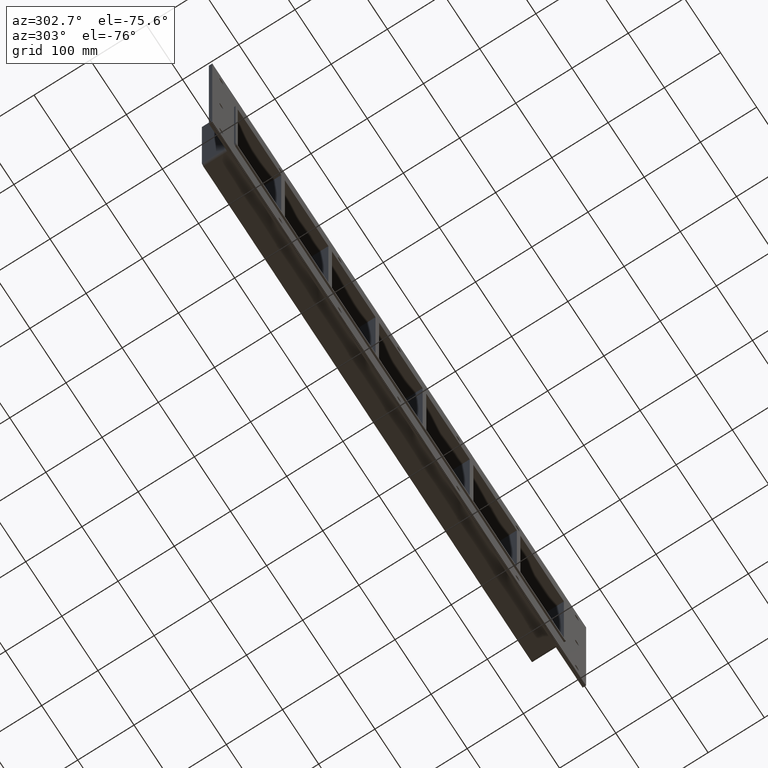
[diagram: clean part render]
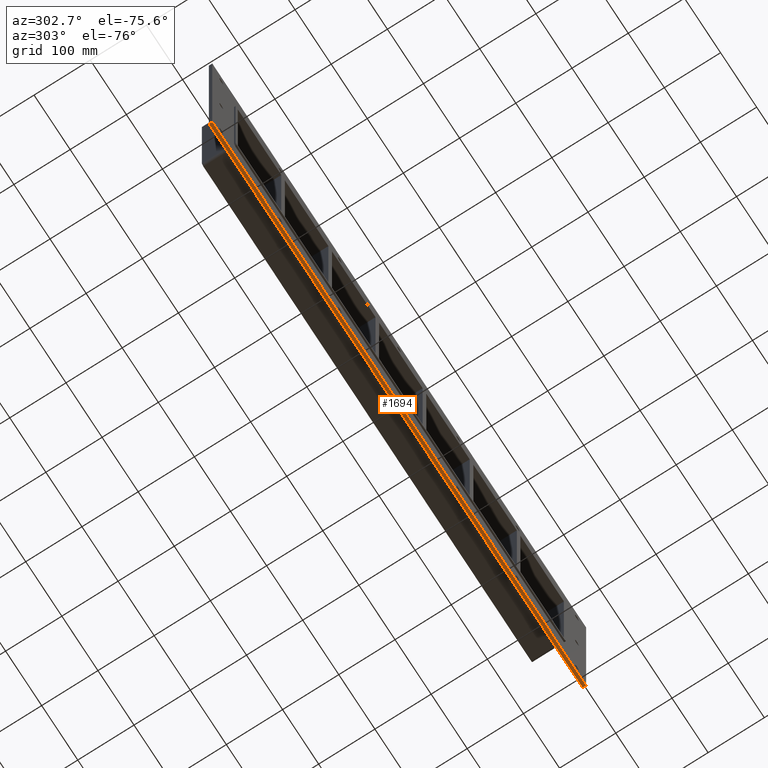
[diagram: same view with one face highlighted and labeled with its STEP entity id]
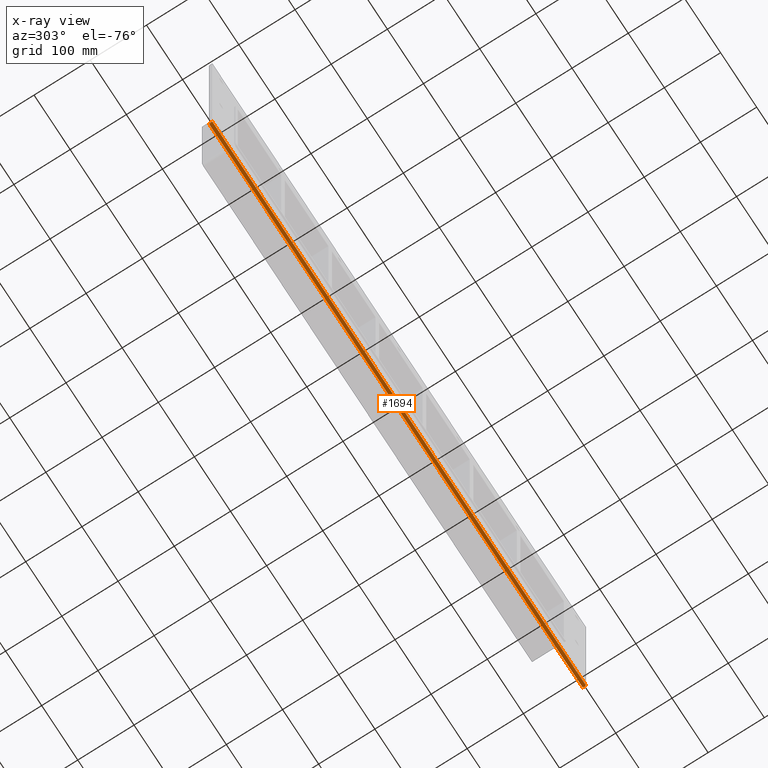
[diagram: x-ray of the same camera — body ghosted, the highlighted face saturated]
A machine part, auxiliary view. The second image highlights one B-rep face of the part: STEP entity #1694.
The next image is the same camera in x-ray: the body ghosted, the highlighted face saturated — about 0% of this face is hidden behind the body in this view.
In plain terms, the highlighted planar face has unit normal (0, 0, -1).
Its self-contained STEP definition (entity closure, byte-faithful):
#1355=CARTESIAN_POINT('',(517.75000000000011,6.000000000000001,-174.99999999999997));
#1356=VERTEX_POINT('',#1355);
#1363=CARTESIAN_POINT('',(-517.75,6.000000000000001,-174.99999999999997));
#1364=VERTEX_POINT('',#1363);
#1365=CARTESIAN_POINT('',(517.75,6.000000000000001,-174.99999999999997));
#1366=DIRECTION('',(-1.0,0.0,0.0));
#1367=VECTOR('',#1366,1035.5);
#1368=LINE('',#1365,#1367);
#1369=EDGE_CURVE('',#1356,#1364,#1368,.T.);
#1513=CARTESIAN_POINT('',(-517.75,0.0,-174.99999999999997));
#1514=VERTEX_POINT('',#1513);
#1521=CARTESIAN_POINT('',(517.75,0.0,-174.99999999999997));
#1522=VERTEX_POINT('',#1521);
#1523=CARTESIAN_POINT('',(517.75,0.0,-174.99999999999997));
#1524=DIRECTION('',(-1.0,0.0,0.0));
#1525=VECTOR('',#1524,1035.5);
#1526=LINE('',#1523,#1525);
#1527=EDGE_CURVE('',#1522,#1514,#1526,.T.);
#1669=CARTESIAN_POINT('',(-517.75,0.0,-174.99999999999997));
#1670=DIRECTION('',(0.0,1.0,0.0));
#1671=VECTOR('',#1670,6.000000000000001);
#1672=LINE('',#1669,#1671);
#1673=EDGE_CURVE('',#1514,#1364,#1672,.T.);
#1678=CARTESIAN_POINT('',(517.75,0.0,-174.99999999999997));
#1679=DIRECTION('',(0.0,0.0,-1.0));
#1680=DIRECTION('',(-1.0,0.0,0.0));
#1681=AXIS2_PLACEMENT_3D('',#1678,#1679,#1680);
#1682=PLANE('',#1681);
#1683=ORIENTED_EDGE('',*,*,#1527,.T.);
#1684=ORIENTED_EDGE('',*,*,#1673,.T.);
#1685=ORIENTED_EDGE('',*,*,#1369,.F.);
#1686=CARTESIAN_POINT('',(517.75,0.0,-174.99999999999997));
#1687=DIRECTION('',(0.0,1.0,0.0));
#1688=VECTOR('',#1687,6.000000000000001);
#1689=LINE('',#1686,#1688);
#1690=EDGE_CURVE('',#1522,#1356,#1689,.T.);
#1691=ORIENTED_EDGE('',*,*,#1690,.F.);
#1692=EDGE_LOOP('',(#1683,#1684,#1685,#1691));
#1693=FACE_OUTER_BOUND('',#1692,.T.);
#1694=ADVANCED_FACE('',(#1693),#1682,.T.);